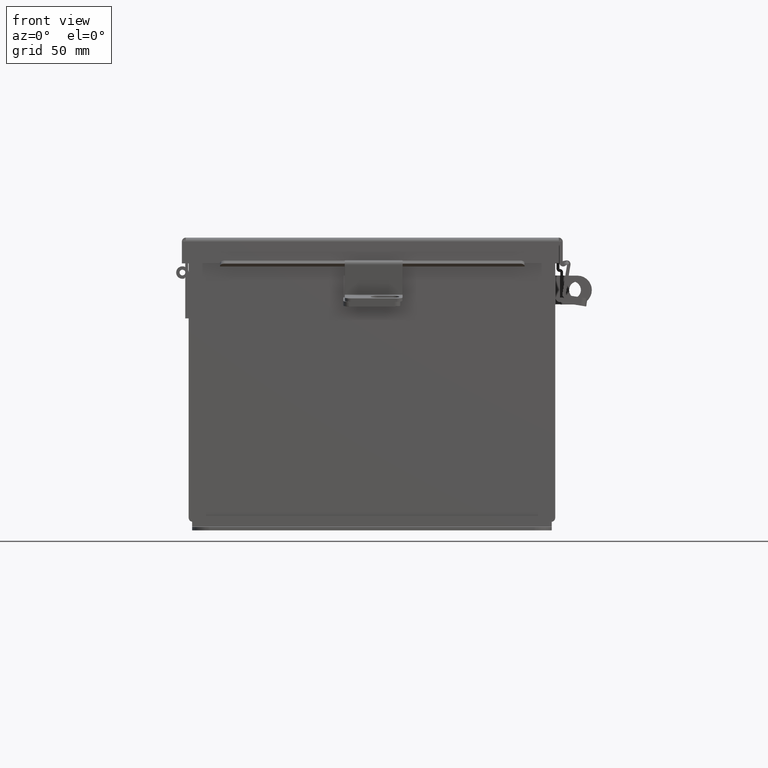
[diagram: clean part render]
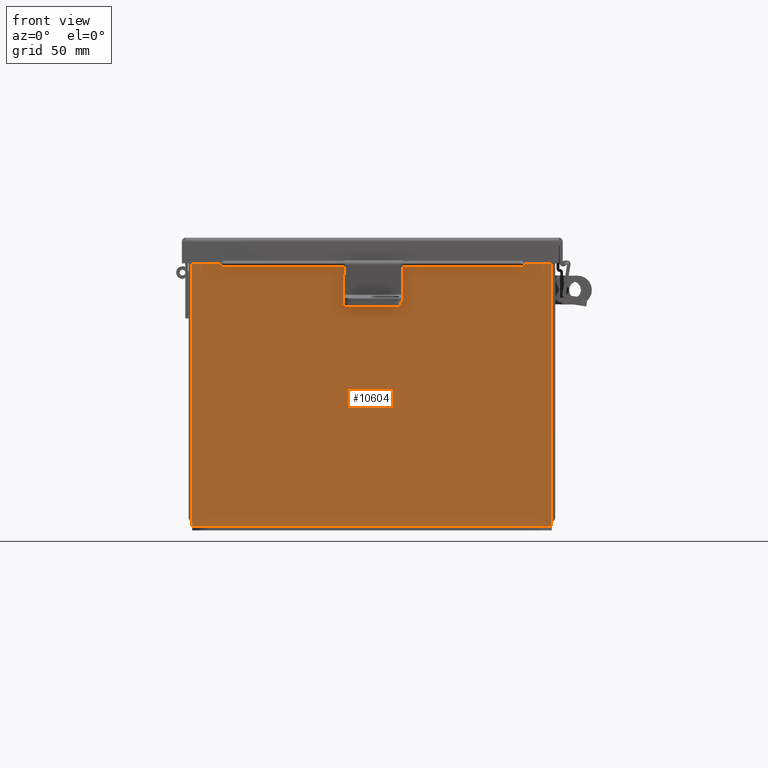
[diagram: same view with one face highlighted and labeled with its STEP entity id]
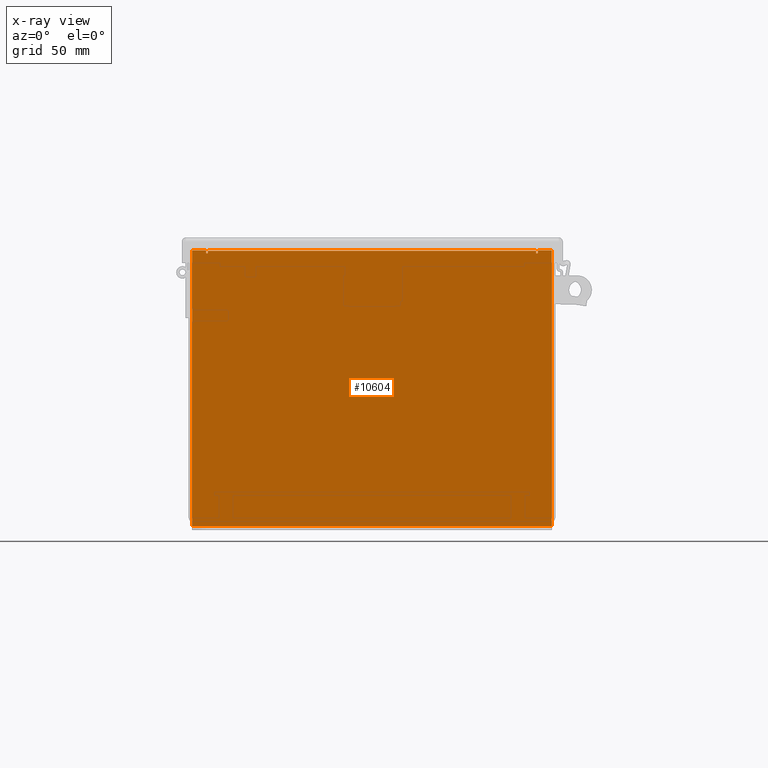
[diagram: x-ray of the same camera — body ghosted, the highlighted face saturated]
A machine part, front view. The second image highlights one B-rep face of the part: STEP entity #10604.
The next image is the same camera in x-ray: the body ghosted, the highlighted face saturated — about 0% of this face is hidden behind the body in this view.
In plain terms, the highlighted planar face has unit normal (-0, 1, -0).
Its self-contained STEP definition (entity closure, byte-faithful):
#127 = CARTESIAN_POINT ( 'NONE',  ( 3.925299999999998700, 8.741913579725642300E-015, 2.925300000000001800 ) ) ;
#264 = CARTESIAN_POINT ( 'NONE',  ( 3.925299999999998700, 0.0000000000000000000, -3.099299999999999900 ) ) ;
#396 = VERTEX_POINT ( 'NONE', #5035 ) ;
#440 = CARTESIAN_POINT ( 'NONE',  ( -3.925300000000000900, 0.0000000000000000000, 2.925299999999999600 ) ) ;
#476 = ORIENTED_EDGE ( 'NONE', *, *, #8737, .T. ) ;
#733 = VECTOR ( 'NONE', #14849, 39.37007874015748100 ) ;
#819 = LINE ( 'NONE', #4620, #7215 ) ;
#1592 = ORIENTED_EDGE ( 'NONE', *, *, #15496, .F. ) ;
#1990 = VERTEX_POINT ( 'NONE', #127 ) ;
#2031 = VECTOR ( 'NONE', #12605, 39.37007874015748100 ) ;
#2326 = CARTESIAN_POINT ( 'NONE',  ( 0.0000000000000000000, 0.0000000000000000000, 0.0000000000000000000 ) ) ;
#2458 = DIRECTION ( 'NONE',  ( 4.910036603141682400E-031, 1.000000000000000000, -0.0000000000000000000 ) ) ;
#2465 = LINE ( 'NONE', #9715, #8838 ) ;
#2694 = ORIENTED_EDGE ( 'NONE', *, *, #6561, .F. ) ;
#2866 = EDGE_CURVE ( 'NONE', #5666, #9439, #3732, .T. ) ;
#2940 = CARTESIAN_POINT ( 'NONE',  ( -3.925300000000000900, 0.0000000000000000000, 2.925299999999999600 ) ) ;
#3206 = CARTESIAN_POINT ( 'NONE',  ( 3.582299999999998700, 0.0000000000000000000, 0.0000000000000000000 ) ) ;
#3286 = VECTOR ( 'NONE', #12229, 39.37007874015748100 ) ;
#3299 = CARTESIAN_POINT ( 'NONE',  ( -3.582300000000000900, 1.092739197465705300E-015, 2.912299999999998300 ) ) ;
#3614 = ORIENTED_EDGE ( 'NONE', *, *, #4446, .F. ) ;
#3732 = LINE ( 'NONE', #9828, #733 ) ;
#3758 = DIRECTION ( 'NONE',  ( 1.000000000000000000, 4.910036603141682400E-031, -0.0000000000000000000 ) ) ;
#4078 = VERTEX_POINT ( 'NONE', #12897 ) ;
#4388 = CARTESIAN_POINT ( 'NONE',  ( 3.619649999999999600, 8.741913579725642300E-015, 2.925300000000000500 ) ) ;
#4446 = EDGE_CURVE ( 'NONE', #12727, #396, #16432, .T. ) ;
#4509 = VECTOR ( 'NONE', #9300, 39.37007874015748100 ) ;
#4620 = CARTESIAN_POINT ( 'NONE',  ( -3.925300000000000900, 0.0000000000000000000, 2.925299999999999600 ) ) ;
#4909 = LINE ( 'NONE', #2940, #4509 ) ;
#5021 = CARTESIAN_POINT ( 'NONE',  ( 3.925299999999998700, 8.741913579725642300E-015, 2.925300000000001800 ) ) ;
#5035 = CARTESIAN_POINT ( 'NONE',  ( 3.582299999999998700, 8.741913579725642300E-015, 2.912300000000000600 ) ) ;
#5121 = CIRCLE ( 'NONE', #9336, 0.01867500000000003900 ) ;
#5416 = LINE ( 'NONE', #5021, #2031 ) ;
#5530 = EDGE_CURVE ( 'NONE', #11113, #10547, #2465, .T. ) ;
#5579 = ORIENTED_EDGE ( 'NONE', *, *, #8487, .T. ) ;
#5666 = VERTEX_POINT ( 'NONE', #4388 ) ;
#5773 = FACE_OUTER_BOUND ( 'NONE', #13613, .T. ) ;
#6437 = CARTESIAN_POINT ( 'NONE',  ( -3.925300000000000900, -1.092739197465705300E-015, -3.099299999999999900 ) ) ;
#6477 = ORIENTED_EDGE ( 'NONE', *, *, #7655, .T. ) ;
#6561 = EDGE_CURVE ( 'NONE', #4078, #15725, #14770, .T. ) ;
#6689 = DIRECTION ( 'NONE',  ( 0.0000000000000000000, 0.0000000000000000000, -1.000000000000000000 ) ) ;
#6705 = CARTESIAN_POINT ( 'NONE',  ( -3.600975000000000900, 0.0000000000000000000, 2.874949999999999200 ) ) ;
#6897 = EDGE_CURVE ( 'NONE', #5666, #1990, #7817, .T. ) ;
#7111 = CARTESIAN_POINT ( 'NONE',  ( -3.619650000000000900, 0.0000000000000000000, 2.874949999999999200 ) ) ;
#7215 = VECTOR ( 'NONE', #12200, 39.37007874015748100 ) ;
#7364 = ORIENTED_EDGE ( 'NONE', *, *, #5530, .F. ) ;
#7430 = VECTOR ( 'NONE', #10384, 39.37007874015748100 ) ;
#7454 = ORIENTED_EDGE ( 'NONE', *, *, #6897, .T. ) ;
#7455 = DIRECTION ( 'NONE',  ( -4.910036603141682400E-031, -1.000000000000000000, -0.0000000000000000000 ) ) ;
#7480 = VERTEX_POINT ( 'NONE', #14913 ) ;
#7655 = EDGE_CURVE ( 'NONE', #1990, #15725, #5416, .T. ) ;
#7767 = ORIENTED_EDGE ( 'NONE', *, *, #11494, .F. ) ;
#7795 = LINE ( 'NONE', #8834, #13754 ) ;
#7817 = LINE ( 'NONE', #440, #7430 ) ;
#7864 = EDGE_CURVE ( 'NONE', #9373, #14304, #13152, .T. ) ;
#7992 = DIRECTION ( 'NONE',  ( 0.0000000000000000000, 0.0000000000000000000, -1.000000000000000000 ) ) ;
#8487 = EDGE_CURVE ( 'NONE', #4078, #7480, #819, .T. ) ;
#8541 = CARTESIAN_POINT ( 'NONE',  ( 3.619649999999998700, 8.741913579725642300E-015, 2.874949999999999200 ) ) ;
#8737 = EDGE_CURVE ( 'NONE', #9373, #396, #7795, .T. ) ;
#8834 = CARTESIAN_POINT ( 'NONE',  ( -3.582300000000000900, 1.092739197465705300E-015, 2.912299999999998300 ) ) ;
#8838 = VECTOR ( 'NONE', #14811, 39.37007874015748100 ) ;
#9123 = ORIENTED_EDGE ( 'NONE', *, *, #13338, .T. ) ;
#9300 = DIRECTION ( 'NONE',  ( 1.000000000000000000, 4.910036603141682400E-031, 0.0000000000000000000 ) ) ;
#9336 = AXIS2_PLACEMENT_3D ( 'NONE', #10055, #2458, #11337 ) ;
#9373 = VERTEX_POINT ( 'NONE', #3299 ) ;
#9407 = VECTOR ( 'NONE', #6689, 39.37007874015748100 ) ;
#9439 = VERTEX_POINT ( 'NONE', #8541 ) ;
#9609 = AXIS2_PLACEMENT_3D ( 'NONE', #2326, #7455, #16348 ) ;
#9715 = CARTESIAN_POINT ( 'NONE',  ( -3.619650000000000900, 0.0000000000000000000, 0.0000000000000000000 ) ) ;
#9828 = CARTESIAN_POINT ( 'NONE',  ( 3.619649999999936500, 0.0000000000000000000, -7.867722221753078700E-014 ) ) ;
#10055 = CARTESIAN_POINT ( 'NONE',  ( 3.600974999999998700, 8.741913579725642300E-015, 2.874949999999999200 ) ) ;
#10384 = DIRECTION ( 'NONE',  ( 1.000000000000000000, 4.910036603141682400E-031, 0.0000000000000000000 ) ) ;
#10488 = CARTESIAN_POINT ( 'NONE',  ( -3.582300000000000900, 0.0000000000000000000, 0.0000000000000000000 ) ) ;
#10547 = VERTEX_POINT ( 'NONE', #14951 ) ;
#10604 = ADVANCED_FACE ( 'NONE', ( #5773 ), #15044, .F. ) ;
#10729 = ORIENTED_EDGE ( 'NONE', *, *, #7864, .F. ) ;
#11113 = VERTEX_POINT ( 'NONE', #7111 ) ;
#11337 = DIRECTION ( 'NONE',  ( 0.0000000000000000000, 0.0000000000000000000, -1.000000000000000000 ) ) ;
#11380 = VECTOR ( 'NONE', #14140, 39.37007874015748100 ) ;
#11494 = EDGE_CURVE ( 'NONE', #14304, #11113, #13679, .T. ) ;
#12200 = DIRECTION ( 'NONE',  ( 0.0000000000000000000, 0.0000000000000000000, 1.000000000000000000 ) ) ;
#12229 = DIRECTION ( 'NONE',  ( 0.0000000000000000000, 0.0000000000000000000, 1.000000000000000000 ) ) ;
#12605 = DIRECTION ( 'NONE',  ( 0.0000000000000000000, 0.0000000000000000000, -1.000000000000000000 ) ) ;
#12727 = VERTEX_POINT ( 'NONE', #16512 ) ;
#12897 = CARTESIAN_POINT ( 'NONE',  ( -3.925300000000000900, -1.092739197465705300E-015, -3.099299999999999900 ) ) ;
#13152 = LINE ( 'NONE', #10488, #9407 ) ;
#13338 = EDGE_CURVE ( 'NONE', #7480, #10547, #4909, .T. ) ;
#13613 = EDGE_LOOP ( 'NONE', ( #7364, #7767, #10729, #476, #3614, #1592, #13808, #7454, #6477, #2694, #5579, #9123 ) ) ;
#13679 = CIRCLE ( 'NONE', #14924, 0.01867500000000003900 ) ;
#13754 = VECTOR ( 'NONE', #3758, 39.37007874015748100 ) ;
#13808 = ORIENTED_EDGE ( 'NONE', *, *, #2866, .F. ) ;
#14140 = DIRECTION ( 'NONE',  ( 1.000000000000000000, 4.910036603141682400E-031, -0.0000000000000000000 ) ) ;
#14304 = VERTEX_POINT ( 'NONE', #15241 ) ;
#14770 = LINE ( 'NONE', #6437, #11380 ) ;
#14811 = DIRECTION ( 'NONE',  ( 0.0000000000000000000, 0.0000000000000000000, 1.000000000000000000 ) ) ;
#14849 = DIRECTION ( 'NONE',  ( -2.170286390199978800E-014, -7.888609052210118100E-031, -1.000000000000000000 ) ) ;
#14913 = CARTESIAN_POINT ( 'NONE',  ( -3.925300000000000900, 0.0000000000000000000, 2.925299999999999600 ) ) ;
#14924 = AXIS2_PLACEMENT_3D ( 'NONE', #6705, #15591, #7992 ) ;
#14951 = CARTESIAN_POINT ( 'NONE',  ( -3.619650000000000900, 0.0000000000000000000, 2.925299999999998200 ) ) ;
#15044 = PLANE ( 'NONE',  #9609 ) ;
#15241 = CARTESIAN_POINT ( 'NONE',  ( -3.582300000000000900, 0.0000000000000000000, 2.874949999999999200 ) ) ;
#15496 = EDGE_CURVE ( 'NONE', #9439, #12727, #5121, .T. ) ;
#15591 = DIRECTION ( 'NONE',  ( 4.910036603141682400E-031, 1.000000000000000000, -0.0000000000000000000 ) ) ;
#15725 = VERTEX_POINT ( 'NONE', #264 ) ;
#16348 = DIRECTION ( 'NONE',  ( 0.0000000000000000000, 0.0000000000000000000, -1.000000000000000000 ) ) ;
#16432 = LINE ( 'NONE', #3206, #3286 ) ;
#16512 = CARTESIAN_POINT ( 'NONE',  ( 3.582299999999998700, 8.741913579725642300E-015, 2.874949999999999200 ) ) ;